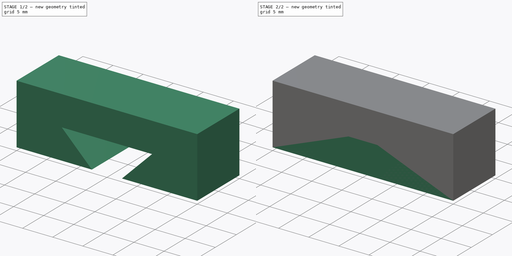
[diagram: build sequence overview — one tinted view per stage of 2, left to right]
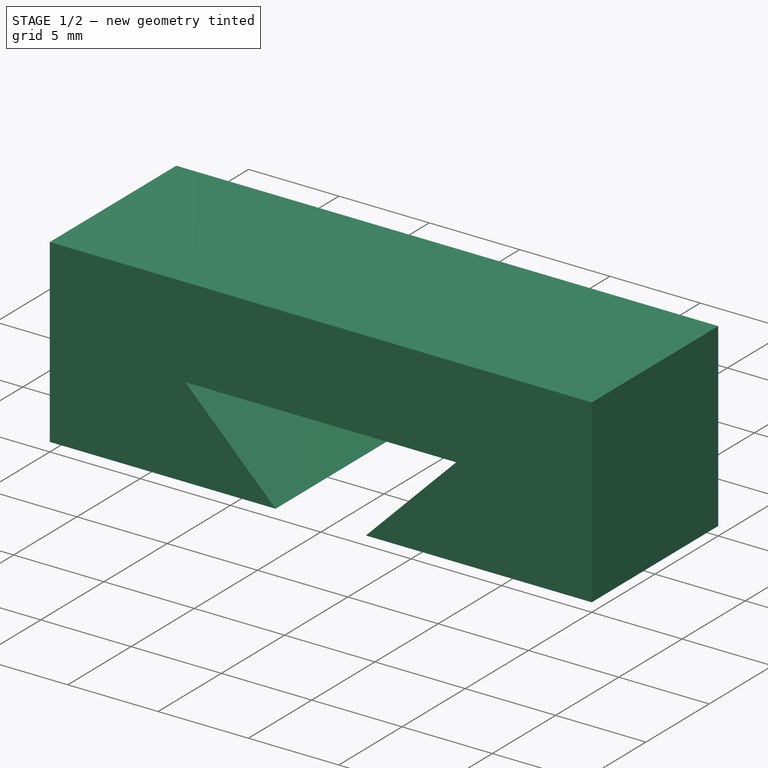
[diagram: stage 1 of 2 — iso view after this stage's code; geometry added in this stage tinted green]
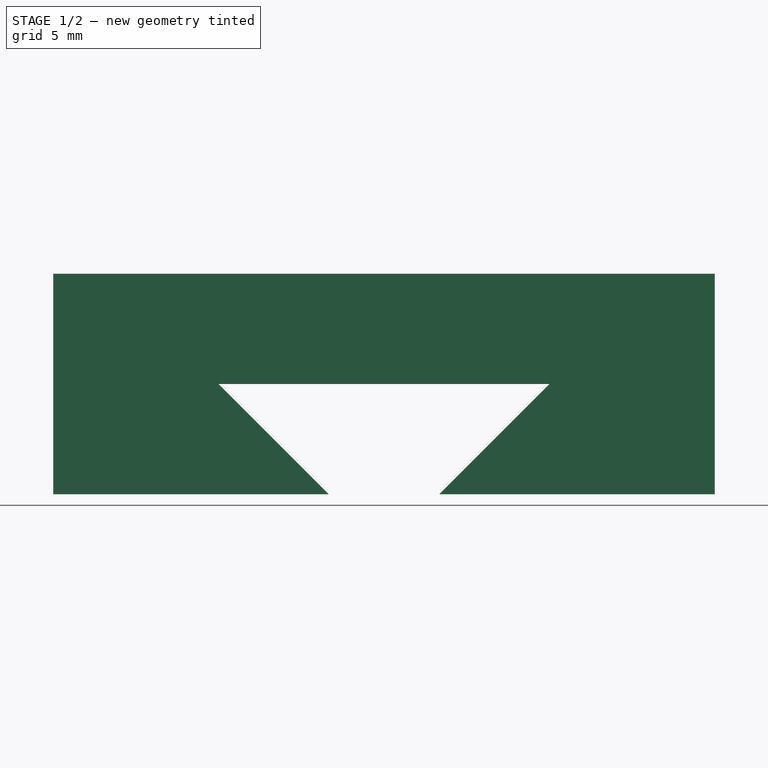
[diagram: stage 1 of 2 — front view after this stage's code; geometry added in this stage tinted green]
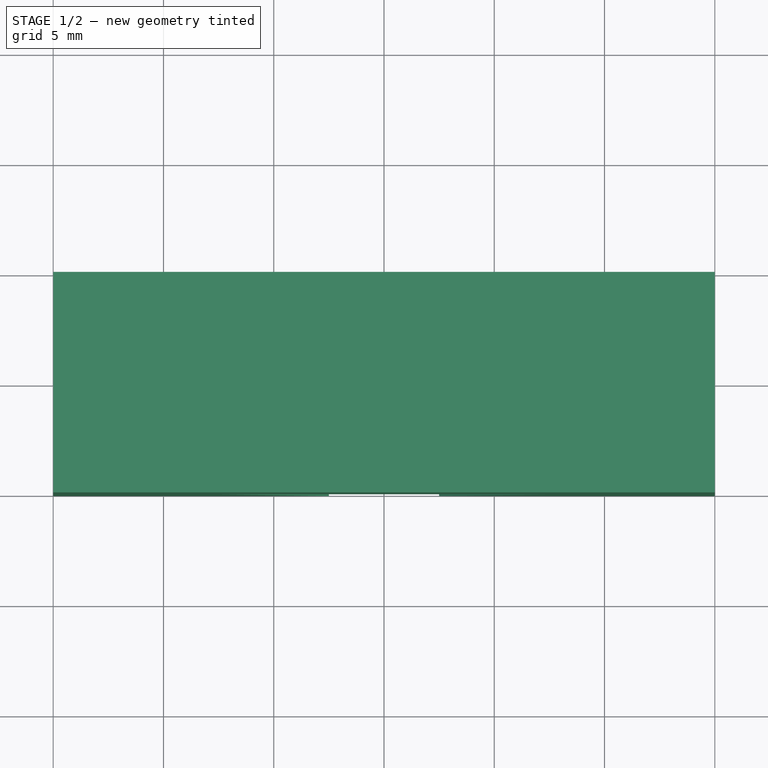
[diagram: stage 1 of 2 — top view after this stage's code; geometry added in this stage tinted green]
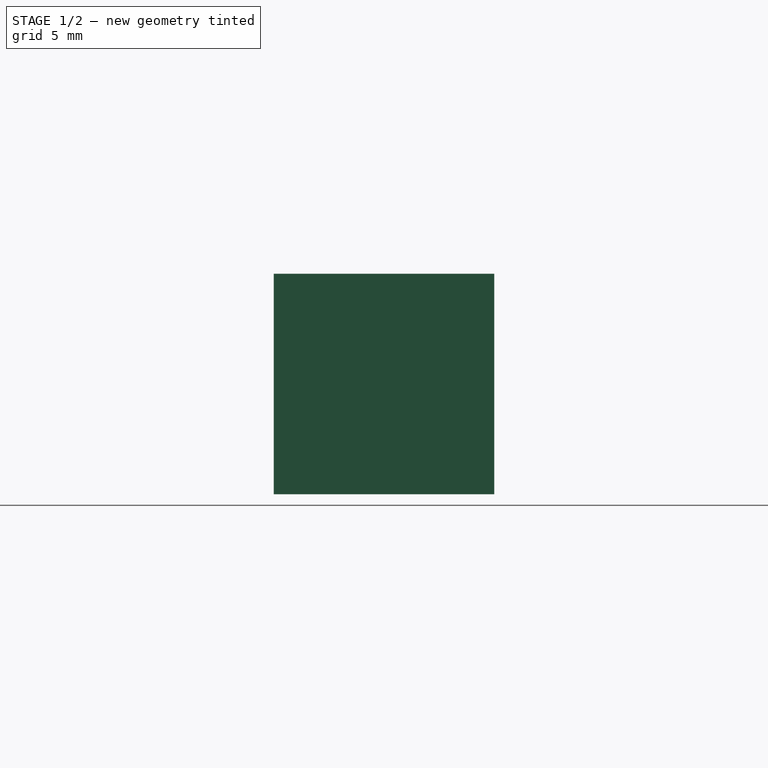
[diagram: stage 1 of 2 — right view after this stage's code; geometry added in this stage tinted green]
FCSTD DOCUMENT  (FreeCAD 1.0R1.0.1)
Label: DovetailTemplate
License: All rights reserved
LicenseURL: http://en.wikipedia.org/wiki/All_rights_reserved
objects: Sketcher::SketchObject×2, PartDesign::Pad×2, PartDesign::Body×2, Spreadsheet::Sheet×1
note: 12 computed .brp shape members not serialized (recipe doc carries the construction recipe); baked Part::Feature solids carry a one-line shape summary decoded from their .brp

FEATURE [PartDesign::Body] Body  label="Lower"
  AllowCompound = false
  Group = -> [Sketch,Pad]
  Origin = -> Origin
  Tip = -> Pad
FEATURE [Sketcher::SketchObject] Sketch001
  ArcFitTolerance = 1e-06
  AttachmentSupport = -> [XZ_Plane001]
  FullyConstrained = true
  MakeInternals = false
  MapMode = 5
  Placement = pos=(0,0,0) rot=(1,0,0;1.5708rad)
  expr: Constraints[16] = <<Dovetail>>.w_guide
  expr: Constraints[17] = <<Dovetail>>.w_guide / 2
  expr: Constraints[18] = <<Dovetail>>.h_guide
  expr: Constraints[21] = <<Dovetail>>.w_base / 2
  expr: Constraints[22] = <<Dovetail>>.w_base
  expr: Constraints[23] = <<Dovetail>>.h_base2 + <<Dovetail>>.h_guide
  sketch-geometry (8):
    g0: LineSegment StartX=-15 StartY=0 StartZ=0 EndX=-2.5 EndY=0 EndZ=0
    g1: LineSegment StartX=-2.5 StartY=0 StartZ=0 EndX=-7.5 EndY=5 EndZ=0
    g2: LineSegment StartX=-7.5 StartY=5 StartZ=0 EndX=7.5 EndY=5 EndZ=0
    g3: LineSegment StartX=7.5 StartY=5 StartZ=0 EndX=2.5 EndY=0 EndZ=0
    g4: LineSegment StartX=2.5 StartY=0 StartZ=0 EndX=15 EndY=0 EndZ=0
    g5: LineSegment StartX=15 StartY=0 StartZ=0 EndX=15 EndY=10 EndZ=0
    g6: LineSegment StartX=15 StartY=10 StartZ=0 EndX=-15 EndY=10 EndZ=0
    g7: LineSegment StartX=-15 StartY=10 StartZ=0 EndX=-15 EndY=0 EndZ=0
  constraints (24):
    c: PointOnObject(g0,g-1)
    c: PointOnObject(g0,g-1)
    c: Coincident(g0,g1)
    c: Coincident(g1,g2)
    c: Horizontal(g2)
    c: Coincident(g2,g3)
    c: PointOnObject(g3,g-1)
    c: Coincident(g3,g4)
    c: PointOnObject(g4,g-1)
    c: Coincident(g4,g5)
    c: Vertical(g5)
    c: Coincident(g5,g6)
    c: Horizontal(g6)
    c: Coincident(g6,g7)
    c: Coincident(g7,g0)
    c: Vertical(g7)
    c: DistanceX(g2,g2) = 15
    c: DistanceX(g1,g-1) = 7.5
    c: DistanceY(g3,g2) = 5
    c: Angle(g4,g3) = 0.785398
    c: Angle(g1,g0) = 0.785398
    c: DistanceX(g0,g-1) = 15
    c: DistanceX(g6,g6) = 30
    c: DistanceY(g7,g7) = 10
FEATURE [PartDesign::Pad] Pad001
  Direction = (0,-1,2e-16)
  Length = 10
  Length2 = 10
  Placement = pos=(0,0,0) rot=(1,0,0;1.5708rad)
  Profile = -> Sketch001
  ReferenceAxis = -> Sketch001 [N_Axis]
  Suppressed = false
  Type = 0
FEATURE [PartDesign::Body] Body001  label="Body"
  AllowCompound = false
  Group = -> [Sketch001,Pad001]
  Origin = -> Origin001
  Tip = -> Pad001
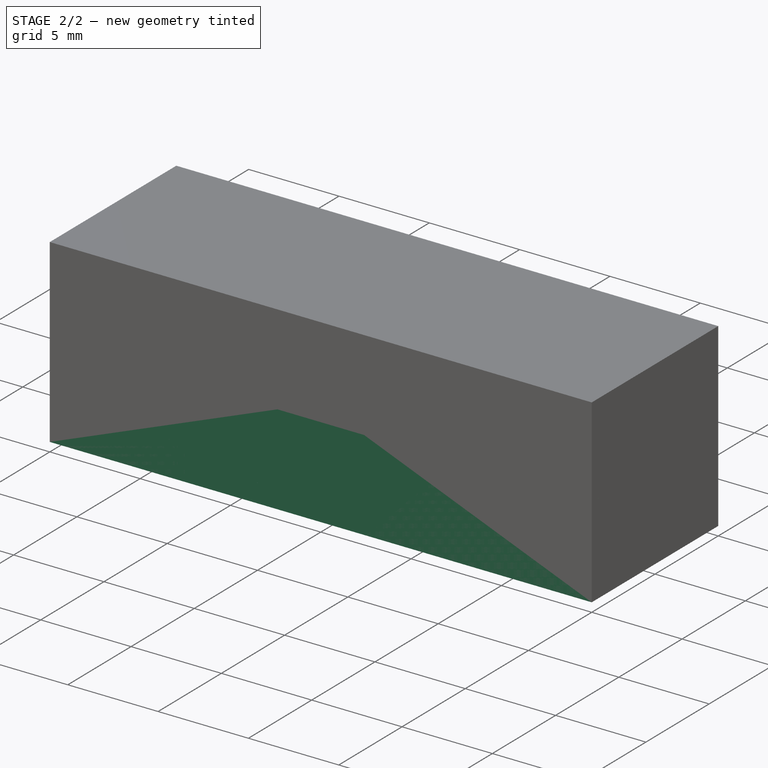
[diagram: stage 2 of 2 — iso view after this stage's code; geometry added in this stage tinted green]
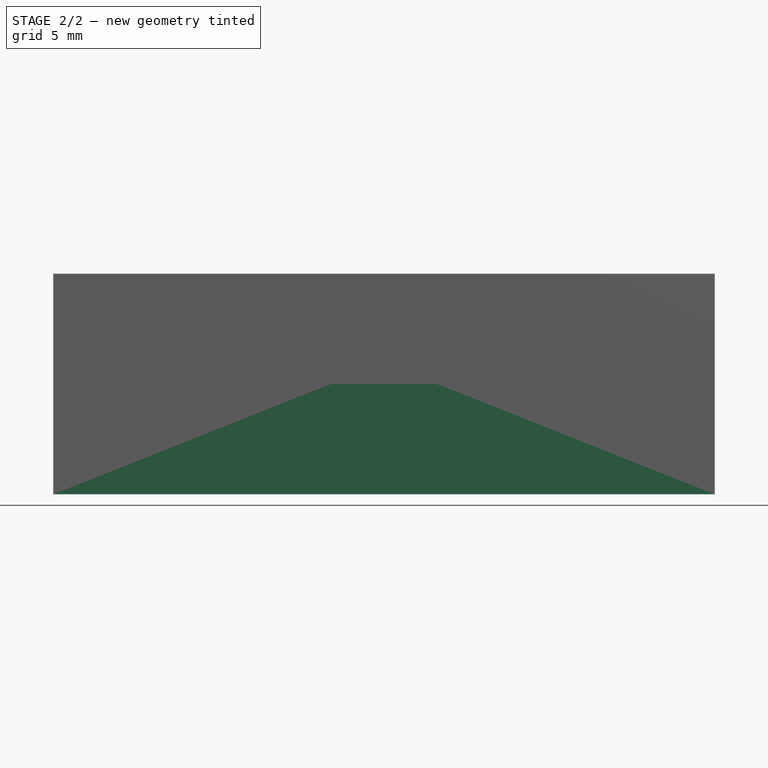
[diagram: stage 2 of 2 — front view after this stage's code; geometry added in this stage tinted green]
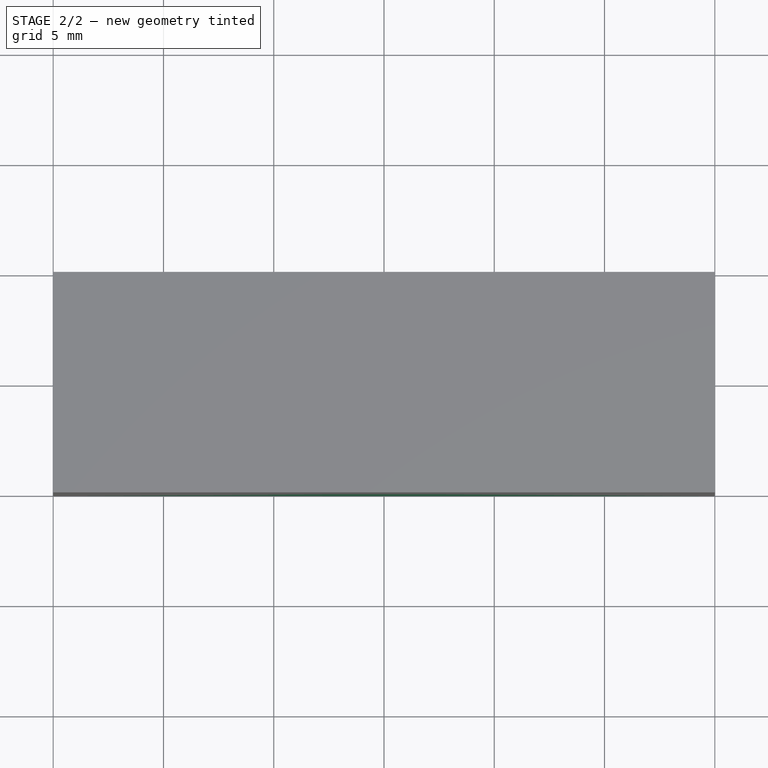
[diagram: stage 2 of 2 — top view after this stage's code; geometry added in this stage tinted green]
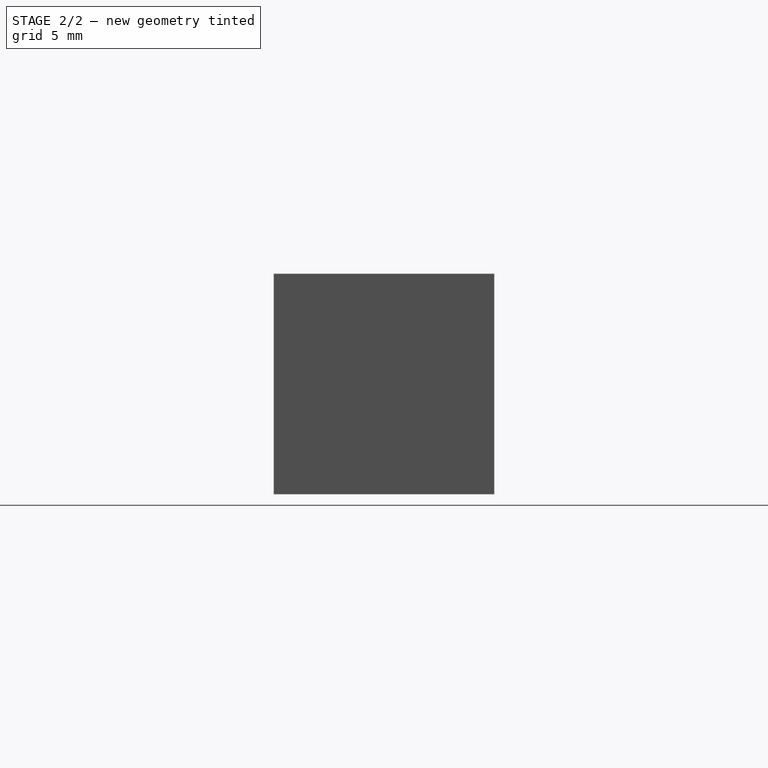
[diagram: stage 2 of 2 — right view after this stage's code; geometry added in this stage tinted green]
FEATURE [Spreadsheet::Sheet] Spreadsheet  label="Dovetail"
  cells = A2='Base Width; B2(w_base)=30; A3='Base height; B3(h_base1)=5; A4='Base height 2; B4(h_base2)=5; A5='Guide height; B5(h_guide)=5; A6='Guide width; B6(w_guide)=15; A7='Guide angle; B7(alpha)=45; A8='Tolerance; B8(tolerance)=0.2
FEATURE [Sketcher::SketchObject] Sketch
  ArcFitTolerance = 1e-06
  AttachmentSupport = -> [XZ_Plane]
  FullyConstrained = true
  MakeInternals = false
  MapMode = 5
  Placement = pos=(0,0,0) rot=(1,0,0;1.5708rad)
  expr: Constraints[15] = <<Dovetail>>.w_base
  expr: Constraints[16] = <<Dovetail>>.w_base / 2
  expr: Constraints[17] = <<Dovetail>>.h_base1
  expr: Constraints[19] = <<Dovetail>>.h_base1
  expr: Constraints[21] = <<Dovetail>>.h_guide
  expr: Constraints[22] = <<Dovetail>>.w_guide - <<Dovetail>>.tolerance
  expr: Constraints[23] = (<<Dovetail>>.w_guide - <<Dovetail>>.tolerance) / 2
  sketch-geometry (8):
    g0: LineSegment StartX=-15 StartY=0 StartZ=0 EndX=15 EndY=0 EndZ=0
    g1: LineSegment StartX=15 StartY=0 StartZ=0 EndX=15 EndY=5 EndZ=0
    g2: LineSegment StartX=15 StartY=5 StartZ=0 EndX=2.4 EndY=5 EndZ=0
    g3: LineSegment StartX=2.4 StartY=5 StartZ=0 EndX=7.4 EndY=10 EndZ=0
    g4: LineSegment StartX=7.4 StartY=10 StartZ=0 EndX=-7.4 EndY=10 EndZ=0
    g5: LineSegment StartX=-7.4 StartY=10 StartZ=0 EndX=-2.4 EndY=5 EndZ=0
    g6: LineSegment StartX=-2.4 StartY=5 StartZ=0 EndX=-15 EndY=5 EndZ=0
    g7: LineSegment StartX=-15 StartY=5 StartZ=0 EndX=-15 EndY=0 EndZ=0
  constraints (24):
    c: PointOnObject(g0,g-1)
    c: Horizontal(g0)
    c: Coincident(g0,g1)
    c: Vertical(g1)
    c: Coincident(g1,g2)
    c: Horizontal(g2)
    c: Coincident(g2,g3)
    c: Coincident(g3,g4)
    c: Horizontal(g4)
    c: Coincident(g4,g5)
    c: Coincident(g5,g6)
    c: Horizontal(g6)
    c: Coincident(g6,g7)
    c: Coincident(g7,g0)
    c: Vertical(g7)
    c: DistanceX(g0,g0) = 30
    c: DistanceX(g0,g-1) = 15
    c: DistanceY(g7,g7) = 5
    c: Angle(g5,g6) = 0.785398
    c: DistanceY(g1,g1) = 5
    c: Angle(g2,g3) = 0.785398
    c: DistanceY(g6,g4) = 5
    c: DistanceX(g4,g4) = 14.8
    c: DistanceX(g4,g-1) = 7.4
FEATURE [PartDesign::Pad] Pad
  Direction = (0,-1,2e-16)
  Length = 10
  Length2 = 10
  Placement = pos=(0,0,0) rot=(1,0,0;1.5708rad)
  Profile = -> Sketch
  ReferenceAxis = -> Sketch [N_Axis]
  Suppressed = false
  Type = 0
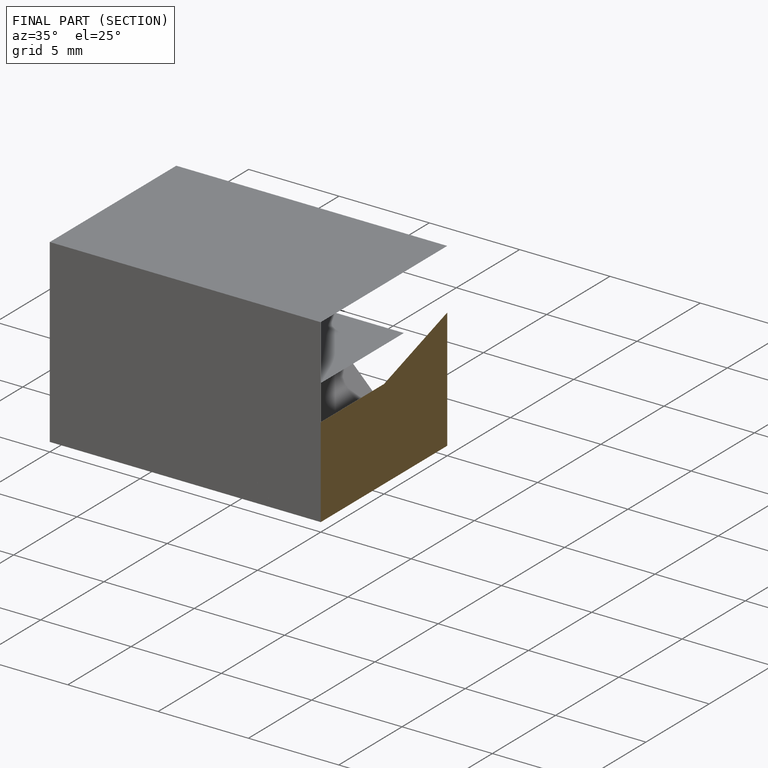
[diagram: finished part — half-section view (interior)]
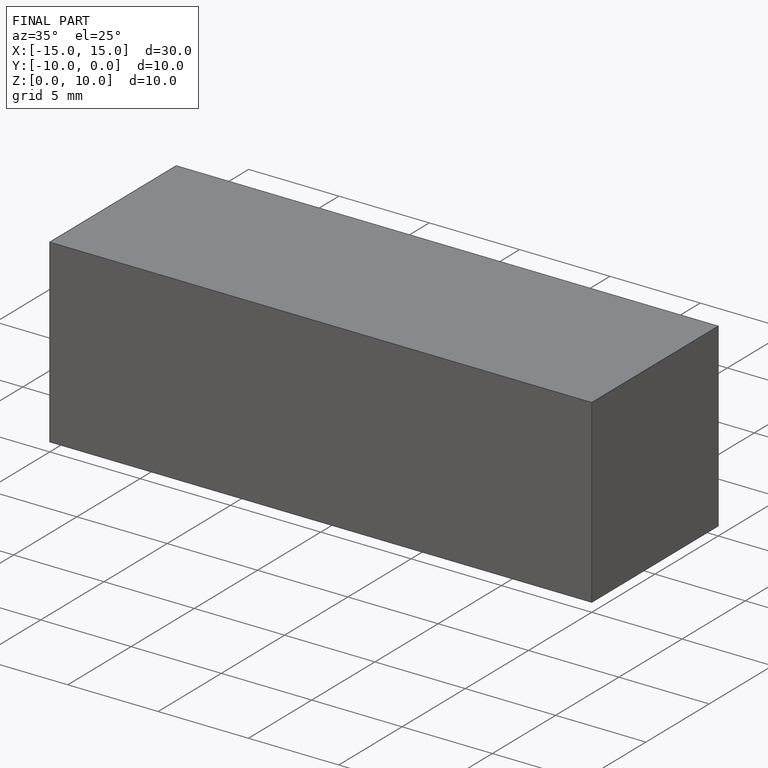
[diagram: finished part — iso view with bounding-box wireframe]
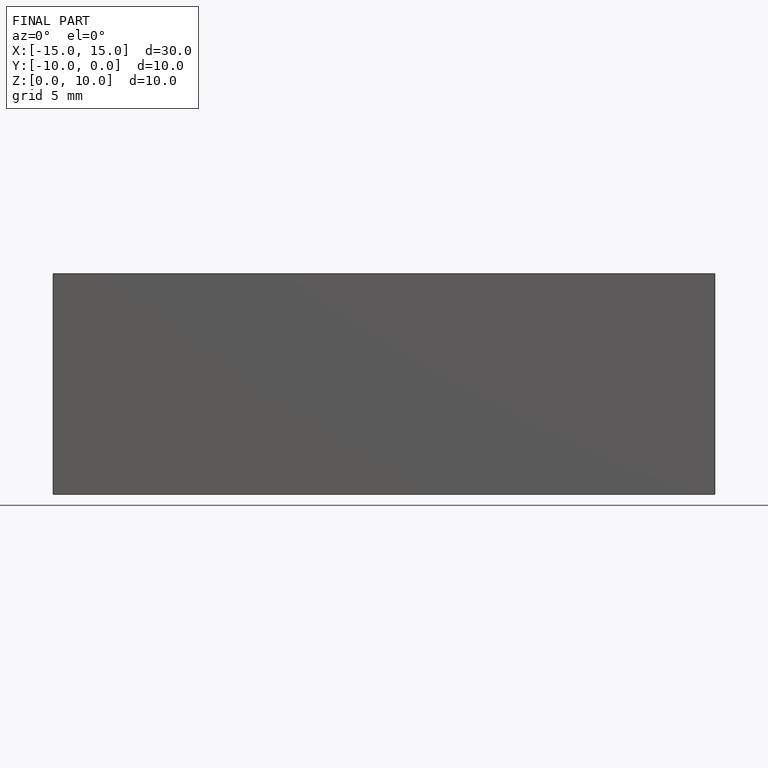
[diagram: finished part — front view with bounding-box wireframe]
